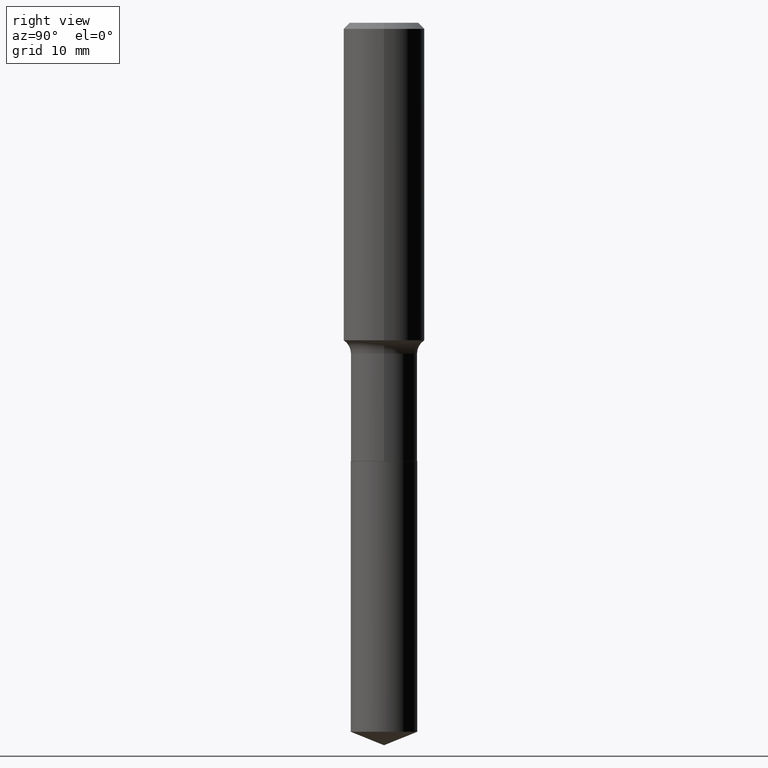
[diagram: clean part render]
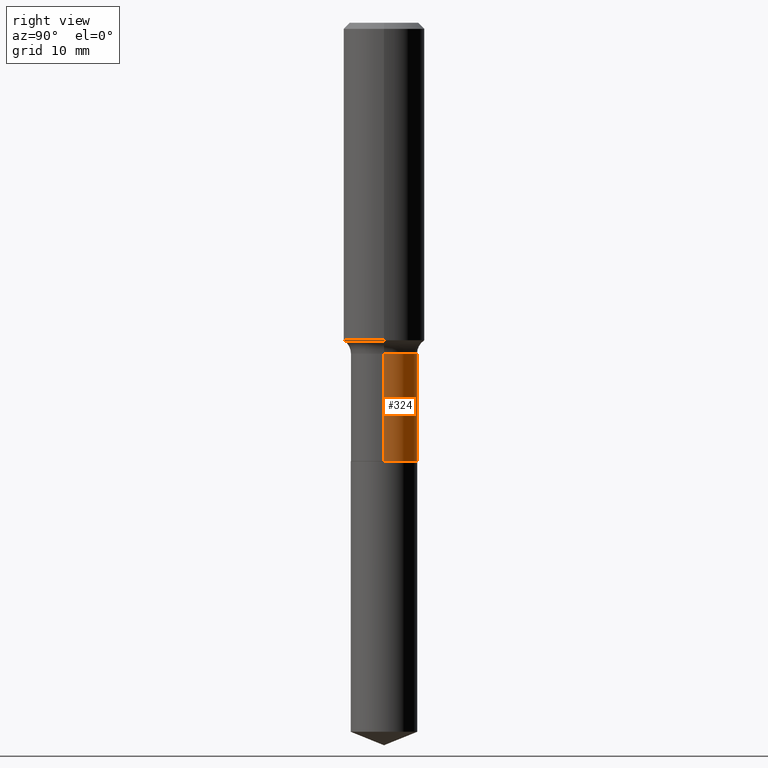
[diagram: same view with one face highlighted and labeled with its STEP entity id]
A machine part, right view. The second image highlights one B-rep face of the part: STEP entity #324.
In plain terms, the highlighted cylindrical surface (edge-blend (fillet) strip) has radius 4.0996 mm, axis along (-0, 0, 1).
Its self-contained STEP definition (entity closure, byte-faithful):
#1 = EDGE_CURVE ( 'NONE', #347, #216, #401, .T. ) ;
#23 = CIRCLE ( 'NONE', #37, 0.1614000000000000157 ) ;
#33 = DIRECTION ( 'NONE',  ( -2.445468806185136597E-29, 3.491481338843145583E-15, 1.000000000000000000 ) ) ;
#37 = AXIS2_PLACEMENT_3D ( 'NONE', #190, #33, #488 ) ;
#69 = VECTOR ( 'NONE', #217, 39.37007874015748143 ) ;
#77 = AXIS2_PLACEMENT_3D ( 'NONE', #184, #479, #290 ) ;
#88 = ORIENTED_EDGE ( 'NONE', *, *, #1, .T. ) ;
#90 = DIRECTION ( 'NONE',  ( 1.000000000000000000, -6.982962677686264344E-15, 0.000000000000000000 ) ) ;
#93 = CIRCLE ( 'NONE', #365, 0.1613999999999999047 ) ;
#98 = ORIENTED_EDGE ( 'NONE', *, *, #150, .F. ) ;
#150 = EDGE_CURVE ( 'NONE', #399, #216, #93, .T. ) ;
#157 = CARTESIAN_POINT ( 'NONE',  ( 0.1613999999999999602, -1.127050176178562936E-15, 7.870149316134637915E-30 ) ) ;
#184 = CARTESIAN_POINT ( 'NONE',  ( 0.000000000000000000, 0.000000000000000000, 0.000000000000000000 ) ) ;
#190 = CARTESIAN_POINT ( 'NONE',  ( 5.197599400665889285E-29, -7.420794437577220826E-15, -2.125399999999999956 ) ) ;
#208 = VECTOR ( 'NONE', #452, 39.37007874015748143 ) ;
#212 = CARTESIAN_POINT ( 'NONE',  ( -0.1613999999999999602, 1.146815975516801417E-15, -7.939161235671416085E-30 ) ) ;
#216 = VERTEX_POINT ( 'NONE', #404 ) ;
#217 = DIRECTION ( 'NONE',  ( -2.445468806185136877E-29, 3.491481338843145188E-15, 1.000000000000000000 ) ) ;
#222 = FACE_OUTER_BOUND ( 'NONE', #406, .T. ) ;
#248 = VERTEX_POINT ( 'NONE', #486 ) ;
#290 = DIRECTION ( 'NONE',  ( 1.000000000000000000, -6.982962677686265133E-15, 4.876176775795935232E-29 ) ) ;
#324 = ADVANCED_FACE ( 'NONE', ( #222 ), #361, .T. ) ;
#335 = ORIENTED_EDGE ( 'NONE', *, *, #396, .T. ) ;
#339 = CARTESIAN_POINT ( 'NONE',  ( 0.1613999999999999047, -6.731226873155694573E-15, -1.605099999999999749 ) ) ;
#347 = VERTEX_POINT ( 'NONE', #483 ) ;
#361 = CYLINDRICAL_SURFACE ( 'NONE', #77, 0.1613999999999999602 ) ;
#365 = AXIS2_PLACEMENT_3D ( 'NONE', #469, #426, #90 ) ;
#396 = EDGE_CURVE ( 'NONE', #248, #347, #23, .T. ) ;
#399 = VERTEX_POINT ( 'NONE', #339 ) ;
#401 = LINE ( 'NONE', #212, #69 ) ;
#404 = CARTESIAN_POINT ( 'NONE',  ( -0.1613999999999999047, -5.365669591760375012E-15, -1.605099999999999749 ) ) ;
#406 = EDGE_LOOP ( 'NONE', ( #335, #88, #98, #492 ) ) ;
#426 = DIRECTION ( 'NONE',  ( -2.445468806185136597E-29, 3.491481338843145583E-15, 1.000000000000000000 ) ) ;
#452 = DIRECTION ( 'NONE',  ( -2.445468806185136877E-29, 3.491481338843145188E-15, 1.000000000000000000 ) ) ;
#469 = CARTESIAN_POINT ( 'NONE',  ( 3.925221980807762664E-29, -5.604176696977132426E-15, -1.605099999999999749 ) ) ;
#479 = DIRECTION ( 'NONE',  ( -2.445468806185136597E-29, 3.491481338843145583E-15, 1.000000000000000000 ) ) ;
#481 = EDGE_CURVE ( 'NONE', #248, #399, #490, .T. ) ;
#483 = CARTESIAN_POINT ( 'NONE',  ( -0.1614000000000000157, -5.365669591760374223E-15, -2.125399999999999956 ) ) ;
#486 = CARTESIAN_POINT ( 'NONE',  ( 0.1614000000000000157, -8.547844613755784551E-15, -2.125399999999999956 ) ) ;
#488 = DIRECTION ( 'NONE',  ( 1.000000000000000000, -6.982962677686265133E-15, 0.000000000000000000 ) ) ;
#490 = LINE ( 'NONE', #157, #208 ) ;
#492 = ORIENTED_EDGE ( 'NONE', *, *, #481, .F. ) ;